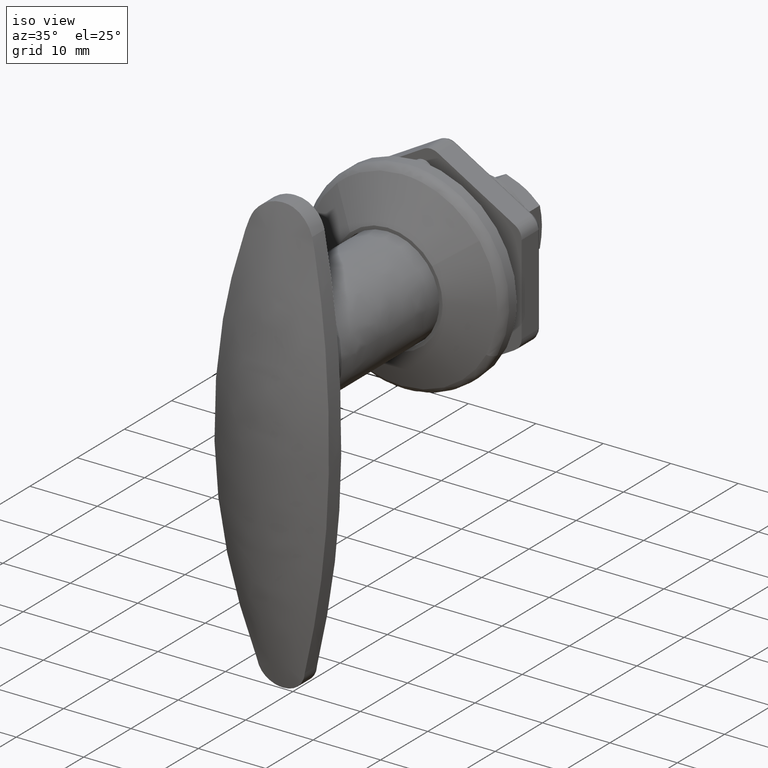
[diagram: clean part render]
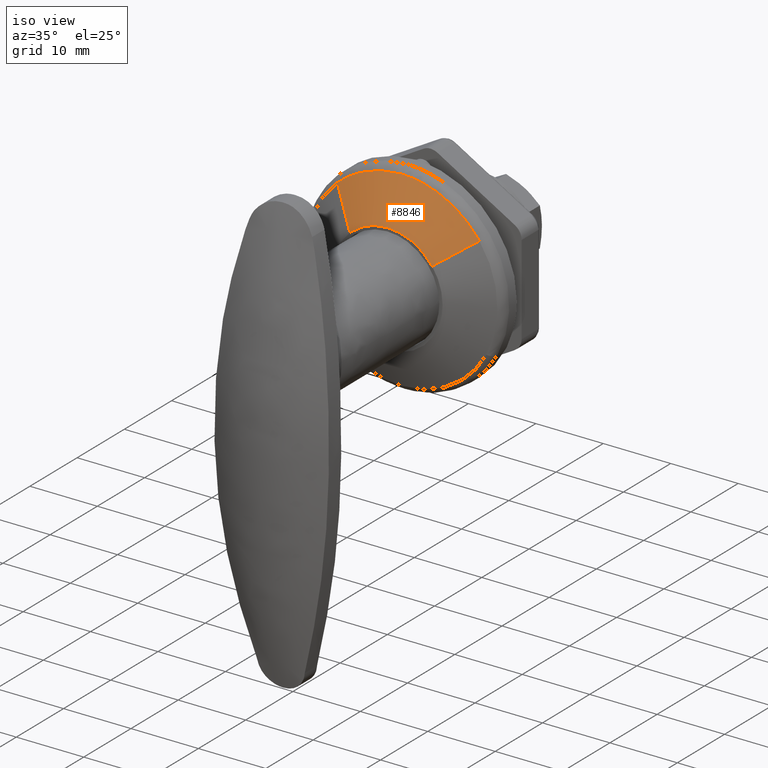
[diagram: same view with one face highlighted and labeled with its STEP entity id]
A machine part, iso view. The second image highlights one B-rep face of the part: STEP entity #8846.
In plain terms, the highlighted face is a freeform B-spline surface patch.
Its self-contained STEP definition (entity closure, byte-faithful):
#8626=CARTESIAN_POINT('',(0.000000085012931,-6.644892134248706,4.804728364784562));
#8627=VERTEX_POINT('',#8626);
#8674=CARTESIAN_POINT('',(-0.000000089180599,5.539839437323038,6.045673872509887));
#8675=VERTEX_POINT('',#8674);
#8687=CARTESIAN_POINT('',(3.080999897517128,9.583922380564680,10.459015967498511));
#8688=VERTEX_POINT('',#8687);
#8689=CARTESIAN_POINT('',(-0.000000089180599,5.539839437323038,6.045673872509887));
#8690=CARTESIAN_POINT('',(3.080999897517128,9.583922380564680,10.459015967498511));
#8691=QUASI_UNIFORM_CURVE('',1,(#8689,#8690),.UNSPECIFIED.,.F.,.U.);
#8692=EDGE_CURVE('',#8675,#8688,#8691,.T.);
#8741=CARTESIAN_POINT('',(3.081000000362809,-11.495662868341080,8.312179692253118));
#8742=VERTEX_POINT('',#8741);
#8757=CARTESIAN_POINT('',(0.000000085012931,-6.644892134248706,4.804728364784562));
#8758=CARTESIAN_POINT('',(3.081000000362809,-11.495662868341080,8.312179692253118));
#8759=QUASI_UNIFORM_CURVE('',1,(#8757,#8758),.UNSPECIFIED.,.F.,.U.);
#8760=EDGE_CURVE('',#8627,#8742,#8759,.T.);
#8765=CARTESIAN_POINT('',(-0.077025000031407,5.438737627837570,5.935340608344470));
#8766=CARTESIAN_POINT('',(-0.077025000031407,-0.496602980506900,11.374078236182042));
#8767=CARTESIAN_POINT('',(-0.077025000031407,-5.935340608344470,5.438737627837570));
#8768=CARTESIAN_POINT('',(-0.077025000031407,-6.250383994682783,5.094928102120917));
#8769=CARTESIAN_POINT('',(-0.077025000031407,-6.523622555132714,4.717041856893244));
#8770=CARTESIAN_POINT('',(3.159950626288462,9.687552313361174,10.572108194124350));
#8771=CARTESIAN_POINT('',(3.159950626288463,-0.884555880763173,20.259660507485517));
#8772=CARTESIAN_POINT('',(3.159950626288462,-10.572108194124350,9.687552313361174));
#8773=CARTESIAN_POINT('',(3.159950626288462,-11.133267693804855,9.075154180904061));
#8774=CARTESIAN_POINT('',(3.159950626288462,-11.619963877646807,8.402058139203987));
#8782=(BOUNDED_SURFACE()B_SPLINE_SURFACE(2,1,((#8765,#8770),(#8766,#8771),(#8767,#8772),(#8768,#8773),(#8769,#8774)),.UNSPECIFIED.,.F.,.F.,.U.)B_SPLINE_SURFACE_WITH_KNOTS((3,2,3),(2,2),(0.0,23.758281331844682,25.658943838392251),(0.0,7.073192425054539),.UNSPECIFIED.)GEOMETRIC_REPRESENTATION_ITEM()RATIONAL_B_SPLINE_SURFACE(((1.0,1.0),(0.707106781186548,0.707106781186548),(1.0,1.0),(0.976568542494924,0.976568542494924),(0.956886118190660,0.956886118190660)))REPRESENTATION_ITEM('')SURFACE());
#8783=CARTESIAN_POINT('',(0.0,0.0,8.200000000000001));
#8784=VERTEX_POINT('',#8783);
#8785=CARTESIAN_POINT('',(0.000000085012931,-6.644892134248706,4.804728364784562));
#8786=CARTESIAN_POINT('',(0.000000082593211,-6.455758799587982,5.066301764559777));
#8787=CARTESIAN_POINT('',(0.000000076049457,-5.944277357668812,5.692308414281677));
#8788=CARTESIAN_POINT('',(0.000000065315187,-5.105251265778176,6.455489607337617));
#8789=CARTESIAN_POINT('',(0.000000052642930,-4.114745724469880,7.119307584556687));
#8790=CARTESIAN_POINT('',(0.000000038046500,-2.973840403402182,7.686524168043420));
#8791=CARTESIAN_POINT('',(0.000000020132294,-1.573606745842207,8.101085326604675));
#8792=CARTESIAN_POINT('',(6.452652E-009,-0.504360626629485,8.200043987365891));
#8793=CARTESIAN_POINT('',(0.0,0.0,8.200000000000001));
#8794=B_SPLINE_CURVE_WITH_KNOTS('',3,(#8785,#8786,#8787,#8788,#8789,#8790,#8791,#8792,#8793),.UNSPECIFIED.,.F.,.U.,(4,1,1,1,1,1,4),(0.000000016888492,0.968368286752923,2.420940862198859,3.389318085671846,4.539253718771031,6.233913253519228,7.746998403415252),.UNSPECIFIED.);
#8795=EDGE_CURVE('',#8627,#8784,#8794,.T.);
#8796=ORIENTED_EDGE('',*,*,#8795,.F.);
#8797=ORIENTED_EDGE('',*,*,#8760,.T.);
#8798=CARTESIAN_POINT('',(3.081000001256270,-5.187573616257527,13.203472120816119));
#8799=VERTEX_POINT('',#8798);
#8800=CARTESIAN_POINT('',(3.081000000362809,-11.495662868341080,8.312179692253118));
#8801=CARTESIAN_POINT('',(3.081000000421349,-11.088245070293770,8.875690908888808));
#8802=CARTESIAN_POINT('',(3.081000000547829,-10.203921929543970,9.926450384253199));
#8803=CARTESIAN_POINT('',(3.081000000747415,-8.798380515417493,11.175211786565770));
#8804=CARTESIAN_POINT('',(3.081000000981069,-7.145690804369457,12.309823917970069));
#8805=CARTESIAN_POINT('',(3.081000001148888,-5.952487446436780,12.903031053914670));
#8806=CARTESIAN_POINT('',(3.081000001256270,-5.187573616257527,13.203472120816119));
#8807=B_SPLINE_CURVE_WITH_KNOTS('',3,(#8800,#8801,#8802,#8803,#8804,#8805,#8806),.UNSPECIFIED.,.F.,.U.,(4,1,1,1,4),(3.923462E-009,2.086096461050713,4.108968714592971,5.626138026234807,8.091525544496436),.UNSPECIFIED.);
#8808=EDGE_CURVE('',#8742,#8799,#8807,.T.);
#8809=ORIENTED_EDGE('',*,*,#8808,.T.);
#8810=CARTESIAN_POINT('',(3.080999999999790,0.0,14.186000000000000));
#8811=VERTEX_POINT('',#8810);
#8812=CARTESIAN_POINT('',(3.081000001256270,-5.187573616257527,13.203472120816119));
#8813=CARTESIAN_POINT('',(3.081000000984605,-4.646945880103267,13.415902069007080));
#8814=CARTESIAN_POINT('',(3.081000000537349,-3.565915002042699,13.765671719640491));
#8815=CARTESIAN_POINT('',(3.081000000102198,-1.825567508181123,14.105859766846219));
#8816=CARTESIAN_POINT('',(3.080999999999836,-0.636186203258631,14.186022422060320));
#8817=CARTESIAN_POINT('',(3.080999999999790,0.0,14.186000000000000));
#8818=B_SPLINE_CURVE_WITH_KNOTS('',3,(#8812,#8813,#8814,#8815,#8816,#8817),.UNSPECIFIED.,.F.,.U.,(4,1,1,4),(1.907363E-009,1.742596716227951,3.402207424776497,5.310765233794140),.UNSPECIFIED.);
#8819=EDGE_CURVE('',#8799,#8811,#8818,.T.);
#8820=ORIENTED_EDGE('',*,*,#8819,.T.);
#8821=CARTESIAN_POINT('',(3.080999999999790,0.0,14.186000000000000));
#8822=CARTESIAN_POINT('',(3.080999992381185,0.712474340411594,14.186035344694830));
#8823=CARTESIAN_POINT('',(3.080999976850992,2.164815865711150,14.076368350546330));
#8824=CARTESIAN_POINT('',(3.080999955095650,4.199324342118659,13.602383048574501));
#8825=CARTESIAN_POINT('',(3.080999936231386,5.963462847240469,12.910400548689051));
#8826=CARTESIAN_POINT('',(3.080999916867997,7.774274997642499,11.931787991293090));
#8827=CARTESIAN_POINT('',(3.080999904645759,8.917274909133669,11.070034787736720));
#8828=CARTESIAN_POINT('',(3.080999897517128,9.583922380564680,10.459015967498511));
#8829=B_SPLINE_CURVE_WITH_KNOTS('',3,(#8821,#8822,#8823,#8824,#8825,#8826,#8827,#8828),.UNSPECIFIED.,.F.,.U.,(4,1,1,1,1,4),(8.217359E-009,2.137421176713160,4.357058212457957,6.247845293975743,7.809810075560087,10.522691883359141),.UNSPECIFIED.);
#8830=EDGE_CURVE('',#8811,#8688,#8829,.T.);
#8831=ORIENTED_EDGE('',*,*,#8830,.T.);
#8832=ORIENTED_EDGE('',*,*,#8692,.F.);
#8833=CARTESIAN_POINT('',(0.0,0.0,8.200000000000001));
#8834=CARTESIAN_POINT('',(-8.669730E-009,0.538557836310892,8.200074432080537));
#8835=CARTESIAN_POINT('',(-0.000000023458658,1.457236231173907,8.109150720756611));
#8836=CARTESIAN_POINT('',(-0.000000041705383,2.590710668434392,7.799614290097587));
#8837=CARTESIAN_POINT('',(-0.000000056861874,3.532221772678464,7.420860693595614));
#8838=CARTESIAN_POINT('',(-0.000000072577954,4.508494210085596,6.889593843177869));
#8839=CARTESIAN_POINT('',(-0.000000083541098,5.189517441179919,6.366741915050256));
#8840=CARTESIAN_POINT('',(-0.000000089180599,5.539839437323038,6.045673872509887));
#8841=B_SPLINE_CURVE_WITH_KNOTS('',3,(#8833,#8834,#8835,#8836,#8837,#8838,#8839,#8840),.UNSPECIFIED.,.F.,.U.,(4,1,1,1,1,4),(2.564362E-009,1.615665757590522,2.756136205446377,3.516448403479347,4.656918926307860,6.082506339999064),.UNSPECIFIED.);
#8842=EDGE_CURVE('',#8784,#8675,#8841,.T.);
#8843=ORIENTED_EDGE('',*,*,#8842,.F.);
#8844=EDGE_LOOP('',(#8796,#8797,#8809,#8820,#8831,#8832,#8843));
#8845=FACE_OUTER_BOUND('',#8844,.T.);
#8846=ADVANCED_FACE('',(#8845),#8782,.T.);